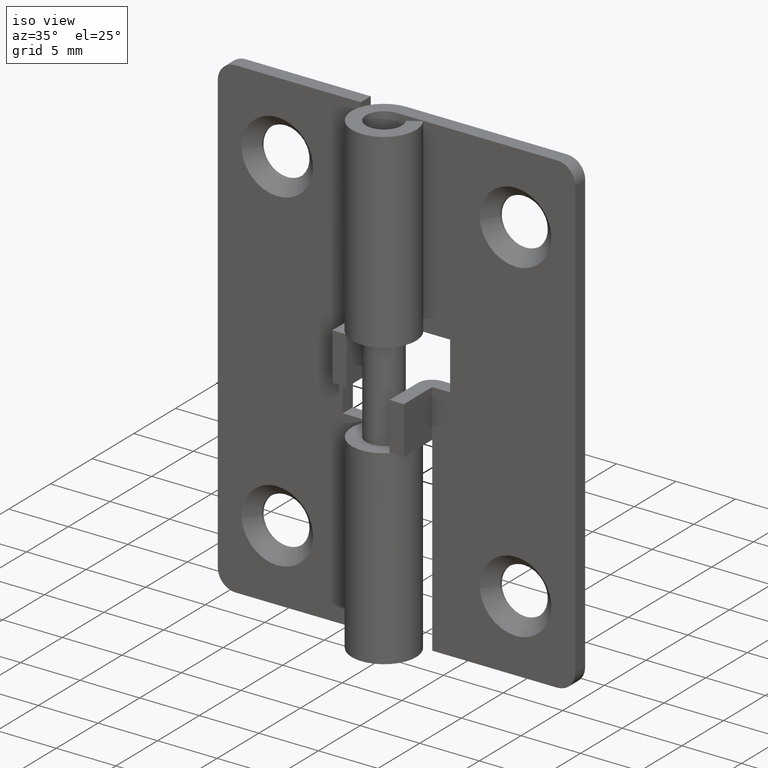
[diagram: clean part render]
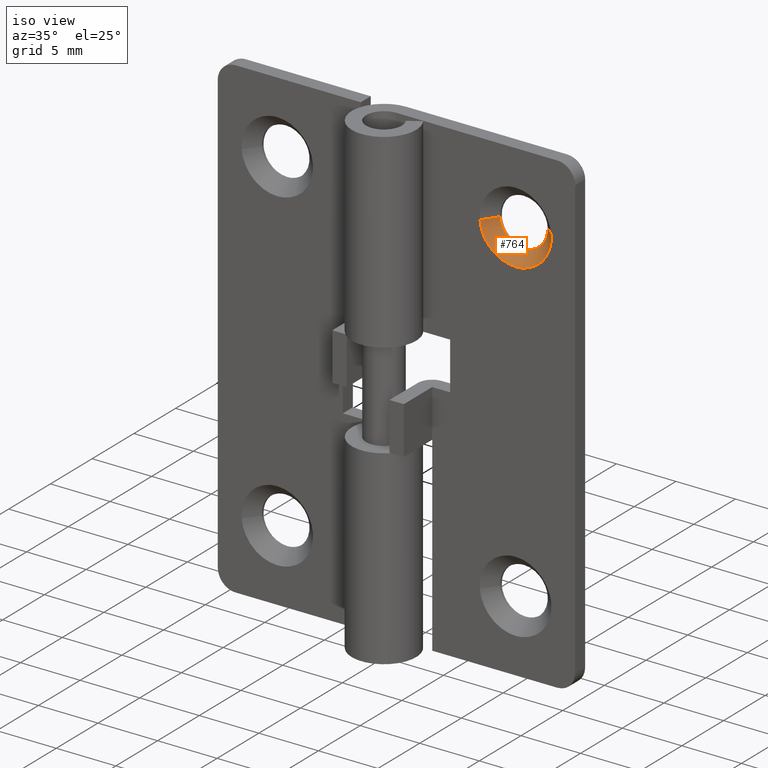
[diagram: same view with one face highlighted and labeled with its STEP entity id]
A machine part, iso view. The second image highlights one B-rep face of the part: STEP entity #764.
In plain terms, the highlighted face is a freeform B-spline surface patch.
Its self-contained STEP definition (entity closure, byte-faithful):
#455=CARTESIAN_POINT('',(11.986938386870619,2.500000000000000,33.771783670512242));
#456=VERTEX_POINT('',#455);
#457=CARTESIAN_POINT('',(10.0,2.500000000000000,31.999984999999999));
#458=VERTEX_POINT('',#457);
#459=CARTESIAN_POINT('',(11.986938386870621,2.500000000000000,33.771783670512242));
#460=CARTESIAN_POINT('',(11.783446011425118,2.500000000000001,31.999984999999999));
#461=CARTESIAN_POINT('',(10.0,2.500000000000000,31.999984999999999));
#469=(BOUNDED_CURVE()B_SPLINE_CURVE(2,(#459,#460,#461),.UNSPECIFIED.,.F.,.U.)B_SPLINE_CURVE_WITH_KNOTS((3,3),(0.269767755877807,0.500000000000000),.UNSPECIFIED.)CURVE()GEOMETRIC_REPRESENTATION_ITEM()RATIONAL_B_SPLINE_CURVE((0.957343736458300,0.730266147777626,1.0))REPRESENTATION_ITEM(''));
#470=EDGE_CURVE('',#456,#458,#469,.T.);
#509=CARTESIAN_POINT('',(8.003730392787135,2.499999999999739,33.877888090464317));
#510=VERTEX_POINT('',#509);
#516=CARTESIAN_POINT('',(10.0,2.500000000000000,31.999984999999999));
#517=CARTESIAN_POINT('',(8.118587706110306,2.500000000000000,31.999985000000002));
#518=CARTESIAN_POINT('',(8.003730392787135,2.499999999999739,33.877888090464317));
#526=(BOUNDED_CURVE()B_SPLINE_CURVE(2,(#516,#517,#518),.UNSPECIFIED.,.F.,.U.)B_SPLINE_CURVE_WITH_KNOTS((3,3),(0.500000000000000,0.739332976895577),.UNSPECIFIED.)CURVE()GEOMETRIC_REPRESENTATION_ITEM()RATIONAL_B_SPLINE_CURVE((1.0,0.719603976115395,0.976072073078678))REPRESENTATION_ITEM(''));
#527=EDGE_CURVE('',#458,#510,#526,.T.);
#554=CARTESIAN_POINT('',(11.993834667483990,2.499999999955608,34.156903191796388));
#555=VERTEX_POINT('',#554);
#556=CARTESIAN_POINT('',(11.993834667483988,2.499999999955608,34.156903191796395));
#557=CARTESIAN_POINT('',(11.999999999999998,2.500000000000001,34.078565214354121));
#558=CARTESIAN_POINT('',(12.0,2.500000000000000,33.999985000000002));
#559=CARTESIAN_POINT('',(12.000000000000005,2.500000000000000,33.885510529942316));
#560=CARTESIAN_POINT('',(11.986938386870616,2.500000000000000,33.771783670512242));
#568=(BOUNDED_CURVE()B_SPLINE_CURVE(2,(#556,#557,#558,#559,#560),.UNSPECIFIED.,.F.,.U.)B_SPLINE_CURVE_WITH_KNOTS((3,2,3),(0.236331300574782,0.250000000000000,0.269767755877807),.UNSPECIFIED.)CURVE()GEOMETRIC_REPRESENTATION_ITEM()RATIONAL_B_SPLINE_CURVE((0.969723356050805,0.983986122513417,1.0,0.976840633408922,0.957343736458301))REPRESENTATION_ITEM(''));
#569=EDGE_CURVE('',#555,#456,#568,.T.);
#657=CARTESIAN_POINT('',(12.990752001211590,1.499999999969431,34.235362287418432));
#658=VERTEX_POINT('',#657);
#659=CARTESIAN_POINT('',(11.993834667483990,2.499999999955608,34.156903191796388));
#660=CARTESIAN_POINT('',(12.990752001211590,1.499999999969431,34.235362287418432));
#661=QUASI_UNIFORM_CURVE('',1,(#659,#660),.UNSPECIFIED.,.F.,.U.);
#662=EDGE_CURVE('',#555,#658,#661,.T.);
#679=CARTESIAN_POINT('',(7.009247998788410,1.499999999969431,33.764607712581572));
#680=VERTEX_POINT('',#679);
#696=CARTESIAN_POINT('',(8.003730392787135,2.499999999999739,33.877888090464317));
#697=CARTESIAN_POINT('',(7.009247998788410,1.499999999969431,33.764607712581572));
#698=QUASI_UNIFORM_CURVE('',1,(#696,#697),.UNSPECIFIED.,.F.,.U.);
#699=EDGE_CURVE('',#510,#680,#698,.T.);
#705=CARTESIAN_POINT('',(8.026242333399814,2.525000000000000,33.906601696130913));
#706=CARTESIAN_POINT('',(8.028649504238221,2.525000000000001,33.876015690623142));
#707=CARTESIAN_POINT('',(8.186044979939540,2.525000000000000,31.876116551814540));
#708=CARTESIAN_POINT('',(10.154956714062500,2.525000000000000,32.031073265877048));
#709=CARTESIAN_POINT('',(12.123868448185451,2.525000000000000,32.186029979939555));
#710=CARTESIAN_POINT('',(11.967812502675978,2.524999999999999,34.168908773880226));
#711=CARTESIAN_POINT('',(11.966719712149880,2.525000000000001,34.182793994038697));
#712=CARTESIAN_POINT('',(6.976278207591342,1.474375000000031,33.856925324673952));
#713=CARTESIAN_POINT('',(6.979965901904230,1.474375000000031,33.810068725729941));
#714=CARTESIAN_POINT('',(7.221089793635270,1.474375000000031,30.746299190612152));
#715=CARTESIAN_POINT('',(10.237387801511559,1.474375000000031,30.983686992123712));
#716=CARTESIAN_POINT('',(13.253685809387857,1.474375000000031,31.221074793635271));
#717=CARTESIAN_POINT('',(13.014614027042489,1.474375000000030,34.258769806757648));
#718=CARTESIAN_POINT('',(13.012939913454877,1.474375000000031,34.280041436753578));
#726=(BOUNDED_SURFACE()B_SPLINE_SURFACE(2,1,((#705,#712),(#706,#713),(#707,#714),(#708,#715),(#709,#716),(#710,#717),(#711,#718)),.UNSPECIFIED.,.F.,.F.,.U.)B_SPLINE_SURFACE_WITH_KNOTS((3,1,2,1,3),(2,2),(0.0,0.112308805901567,5.125328444521951,10.138348083142340,10.188787625325221),(0.0,1.0),.UNSPECIFIED.)GEOMETRIC_REPRESENTATION_ITEM()RATIONAL_B_SPLINE_SURFACE(((1.013123622101212,1.013123622101212),(1.006561811050606,1.006561811050606),(0.707106781186548,0.707106781186548),(1.0,1.0),(0.707106781186548,0.707106781186548),(1.002947006181984,1.002947006181984),(1.005894012363967,1.005894012363967)))REPRESENTATION_ITEM('')SURFACE());
#727=ORIENTED_EDGE('',*,*,#569,.T.);
#728=ORIENTED_EDGE('',*,*,#470,.T.);
#729=ORIENTED_EDGE('',*,*,#527,.T.);
#730=ORIENTED_EDGE('',*,*,#699,.T.);
#731=CARTESIAN_POINT('',(10.0,1.500000000000030,30.999985000000009));
#732=VERTEX_POINT('',#731);
#733=CARTESIAN_POINT('',(10.0,1.500000000000030,30.999985000000009));
#734=CARTESIAN_POINT('',(7.226828525457881,1.500000000000030,30.999985000000002));
#735=CARTESIAN_POINT('',(7.009247998788410,1.499999999969432,33.764607712581572));
#743=(BOUNDED_CURVE()B_SPLINE_CURVE(2,(#733,#734,#735),.UNSPECIFIED.,.F.,.U.)B_SPLINE_CURVE_WITH_KNOTS((3,3),(0.500000000000000,0.736331300606114),.UNSPECIFIED.)CURVE()GEOMETRIC_REPRESENTATION_ITEM()RATIONAL_B_SPLINE_CURVE((1.0,0.723120658636423,0.969723356116193))REPRESENTATION_ITEM(''));
#744=EDGE_CURVE('',#732,#680,#743,.T.);
#745=ORIENTED_EDGE('',*,*,#744,.F.);
#746=CARTESIAN_POINT('',(12.990752001211590,1.499999999969430,34.235362287418440));
#747=CARTESIAN_POINT('',(13.0,1.500000000000030,34.117855321256592));
#748=CARTESIAN_POINT('',(13.0,1.500000000000030,33.999985000000002));
#749=CARTESIAN_POINT('',(13.000000000000004,1.500000000000031,30.999985000000006));
#750=CARTESIAN_POINT('',(10.0,1.500000000000030,30.999985000000009));
#758=(BOUNDED_CURVE()B_SPLINE_CURVE(2,(#746,#747,#748,#749,#750),.UNSPECIFIED.,.F.,.U.)B_SPLINE_CURVE_WITH_KNOTS((3,2,3),(0.236331300606114,0.250000000000000,0.500000000000000),.UNSPECIFIED.)CURVE()GEOMETRIC_REPRESENTATION_ITEM()RATIONAL_B_SPLINE_CURVE((0.969723356116194,0.983986122550125,1.0,0.707106781186548,1.0))REPRESENTATION_ITEM(''));
#759=EDGE_CURVE('',#658,#732,#758,.T.);
#760=ORIENTED_EDGE('',*,*,#759,.F.);
#761=ORIENTED_EDGE('',*,*,#662,.F.);
#762=EDGE_LOOP('',(#727,#728,#729,#730,#745,#760,#761));
#763=FACE_OUTER_BOUND('',#762,.T.);
#764=ADVANCED_FACE('',(#763),#726,.F.);